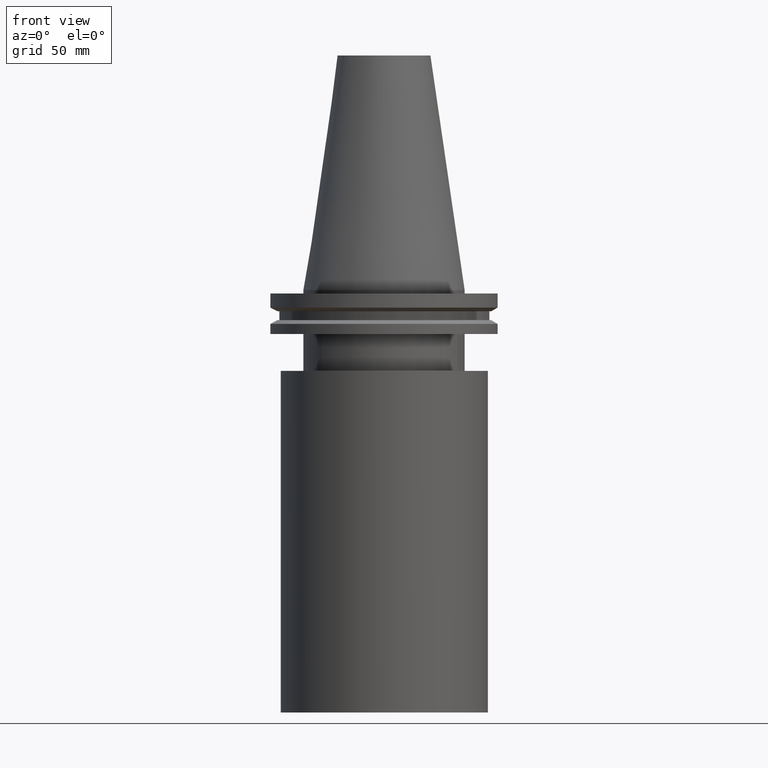
[diagram: clean part render]
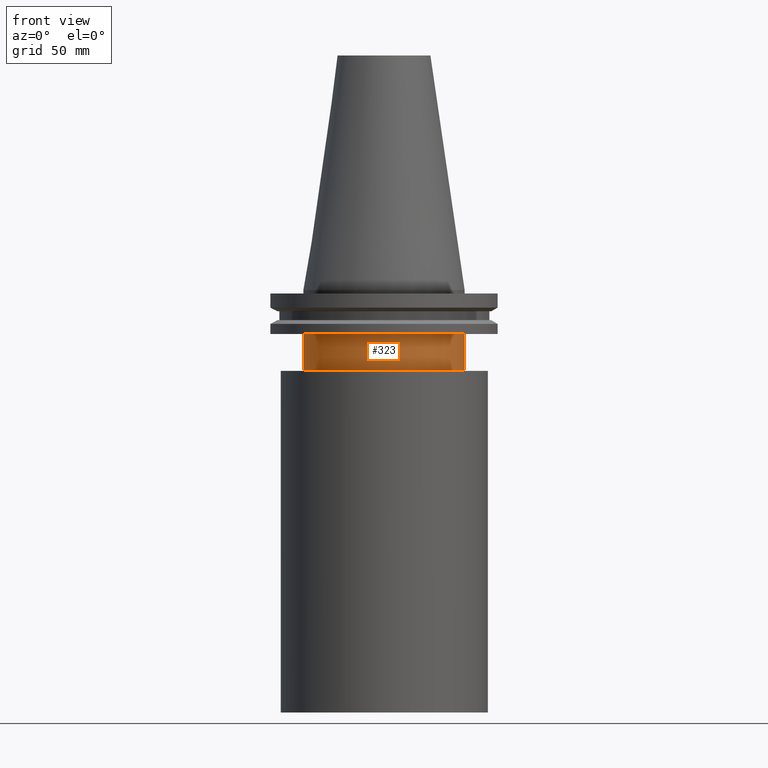
[diagram: same view with one face highlighted and labeled with its STEP entity id]
A machine part, front view. The second image highlights one B-rep face of the part: STEP entity #323.
In plain terms, the highlighted cylindrical surface (bore or boss wall) has radius 34.925 mm, axis along (-0, -0, 1).
Its self-contained STEP definition (entity closure, byte-faithful):
#17 = CYLINDRICAL_SURFACE ( 'NONE', #236, 34.92499999999999716 ) ;
#22 = DIRECTION ( 'NONE',  ( 1.000000000000000000, 0.000000000000000000, 0.000000000000000000 ) ) ;
#27 = DIRECTION ( 'NONE',  ( -0.000000000000000000, -0.000000000000000000, 1.000000000000000000 ) ) ;
#34 = EDGE_LOOP ( 'NONE', ( #391 ) ) ;
#71 = AXIS2_PLACEMENT_3D ( 'NONE', #198, #27, #234 ) ;
#73 = VERTEX_POINT ( 'NONE', #187 ) ;
#78 = DIRECTION ( 'NONE',  ( 1.000000000000000000, 0.000000000000000000, 0.000000000000000000 ) ) ;
#79 = EDGE_CURVE ( 'NONE', #205, #205, #138, .T. ) ;
#111 = FACE_OUTER_BOUND ( 'NONE', #34, .T. ) ;
#125 = ORIENTED_EDGE ( 'NONE', *, *, #338, .F. ) ;
#138 = CIRCLE ( 'NONE', #307, 34.92499999999999716 ) ;
#156 = EDGE_LOOP ( 'NONE', ( #125 ) ) ;
#168 = CIRCLE ( 'NONE', #71, 34.92499999999999716 ) ;
#187 = CARTESIAN_POINT ( 'NONE',  ( 34.92499999999999716, 0.000000000000000000, -19.04999999999999716 ) ) ;
#198 = CARTESIAN_POINT ( 'NONE',  ( 0.000000000000000000, 0.000000000000000000, -19.04999999999999716 ) ) ;
#205 = VERTEX_POINT ( 'NONE', #326 ) ;
#234 = DIRECTION ( 'NONE',  ( 1.000000000000000000, 0.000000000000000000, 0.000000000000000000 ) ) ;
#236 = AXIS2_PLACEMENT_3D ( 'NONE', #386, #268, #22 ) ;
#268 = DIRECTION ( 'NONE',  ( -0.000000000000000000, -0.000000000000000000, 1.000000000000000000 ) ) ;
#301 = FACE_OUTER_BOUND ( 'NONE', #156, .T. ) ;
#307 = AXIS2_PLACEMENT_3D ( 'NONE', #315, #378, #78 ) ;
#315 = CARTESIAN_POINT ( 'NONE',  ( 0.000000000000000000, 0.000000000000000000, -35.00000000000000000 ) ) ;
#323 = ADVANCED_FACE ( 'NONE', ( #301, #111 ), #17, .T. ) ;
#326 = CARTESIAN_POINT ( 'NONE',  ( 34.92499999999999716, 0.000000000000000000, -35.00000000000000000 ) ) ;
#338 = EDGE_CURVE ( 'NONE', #73, #73, #168, .T. ) ;
#378 = DIRECTION ( 'NONE',  ( -0.000000000000000000, -0.000000000000000000, 1.000000000000000000 ) ) ;
#386 = CARTESIAN_POINT ( 'NONE',  ( 0.000000000000000000, 0.000000000000000000, 101.5999999999999943 ) ) ;
#391 = ORIENTED_EDGE ( 'NONE', *, *, #79, .T. ) ;